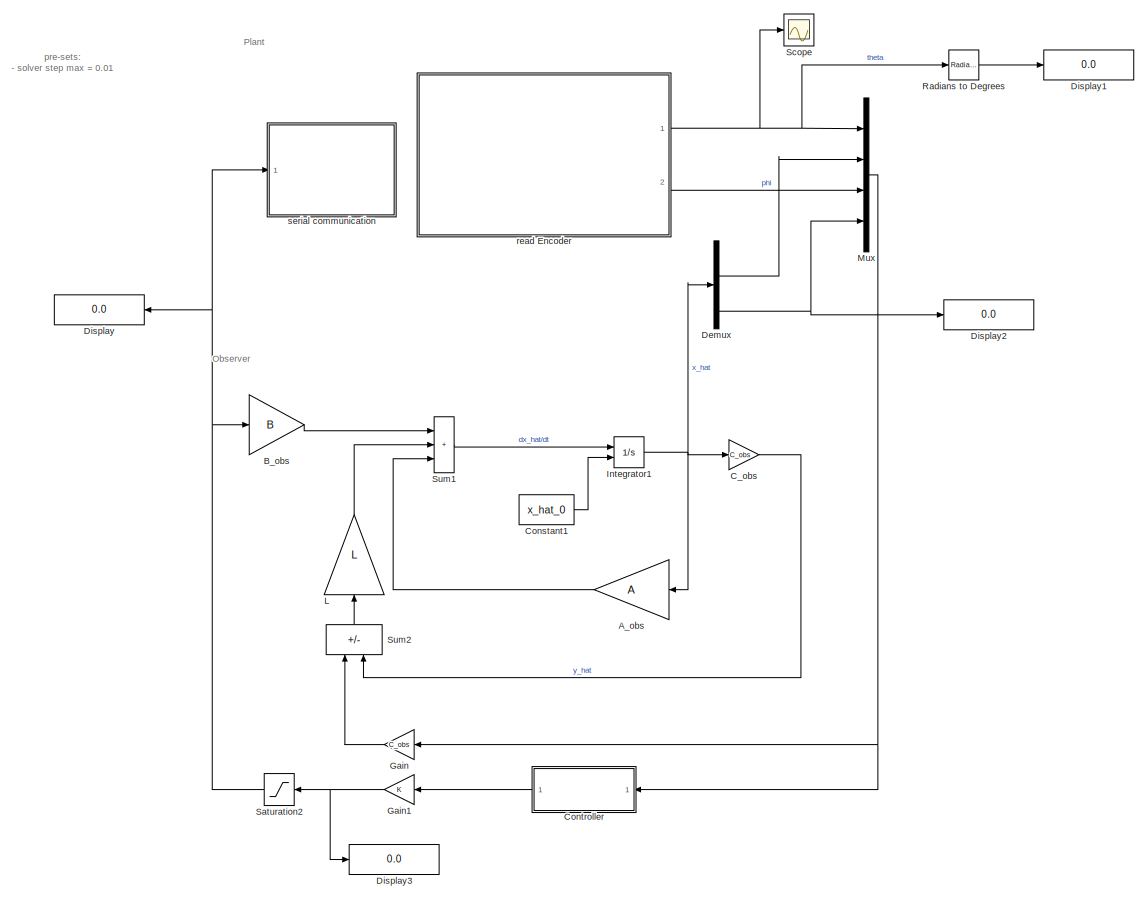
[diagram: root canvas - part 1/2, most of the canvas]
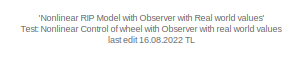
[diagram: root canvas - part 2/2, top left region]
MODEL slx_137b5816bc95
KIND model
CONFIG AbsTol = auto
CONFIG EnableMultiTasking = on
CONFIG FixedStep = 0.01
CONFIG MaxStep = 1e-3
CONFIG MinStep = 1e-5
CONFIG RelTol = 1e-3
CONFIG SampleTimeConstraint = Unconstrained
CONFIG SolverName = FixedStepAuto
CONFIG StartTime = 0.0
CONFIG StopTime = inf
BLOCK [Gain] A_obs
  Gain = A
  Multiplication = Matrix(K*u)
BLOCK [Gain] B_obs
  Gain = B
  Multiplication = Matrix(K*u)
BLOCK [Gain] C_obs
  Gain = C_obs
  Multiplication = Matrix(K*u)
BLOCK [Constant] Constant1
  Value = x_hat_0
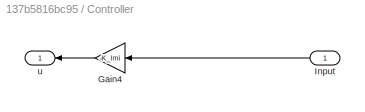
BLOCK [SubSystem] Controller
  NameLocation = top
  Ports = [1, 1]
  RequestExecContextInheritance = off
BLOCK [Gain] Controller/Gain4
  Gain = -K_lmi
  Multiplication = Matrix(K*u)
  NameLocation = top
BLOCK [Inport] Controller/Input
  NameLocation = top
BLOCK [Outport] Controller/u
  NameLocation = top
BLOCK [Demux] Demux
  Ports = [1, 4]
BLOCK [Display] Display
  Decimation = 1
  NameLocation = top
  Ports = [1]
BLOCK [Display] Display1
  Decimation = 1
  Ports = [1]
BLOCK [Display] Display2
  Decimation = 1
  Ports = [1]
BLOCK [Display] Display3
  Decimation = 1
  Ports = [1]
BLOCK [Gain] Gain
  Gain = C_obs
  Multiplication = Matrix(K*u)
  NameLocation = top
BLOCK [Gain] Gain1
  NameLocation = top
BLOCK [Integrator] Integrator1
  InitialCondition = x0
  InitialConditionSource = external
  Ports = [2, 1]
BLOCK [Gain] L
  Gain = L
  Multiplication = Matrix(K*u)
  NameLocation = left
BLOCK [Mux] Mux
  DisplayOption = bar
  Ports = [4, 1]
BLOCK [Reference] Radians to Degrees  REF=simulink_extras/Transformations/Radians
to Degrees
  Ports = [1, 1]
  SourceBlock = simulink_extras/Transformations/Radians\nto Degrees
  SourceProductBaseCode = SL
  SourceType = RadiansToDegrees
BLOCK [Saturate] Saturation2
  LowerLimit = -12
  NameLocation = top
  UpperLimit = 12
BLOCK [Scope] Scope
  Floating = off
  NumInputPorts = 1
  Ports = [1]
  ScopeSpecificationString = Simulink.scopes.TimeScopeBlockCfg('CurrentConfiguration', extmgr.ConfigurationSet(extmgr.Configuration('Core','General UI',true),extmgr.Configuration('Core','Source UI',true),extmgr.Configuration('Sources','WiredSimulink',true),extmgr.Configuration('Visuals','Time Domain',true),extmgr.Configuration('Tools','Plot Navigation',true),extmgr.Configuration('Tools','Measurements',true)),'Version','2022a'...<+1ch>
BLOCK [Sum] Sum1
  IconShape = rectangular
  Inputs = +++
  Ports = [3, 1]
BLOCK [Sum] Sum2
  IconShape = rectangular
  Inputs = +-
  NameLocation = right
  Ports = [2, 1]
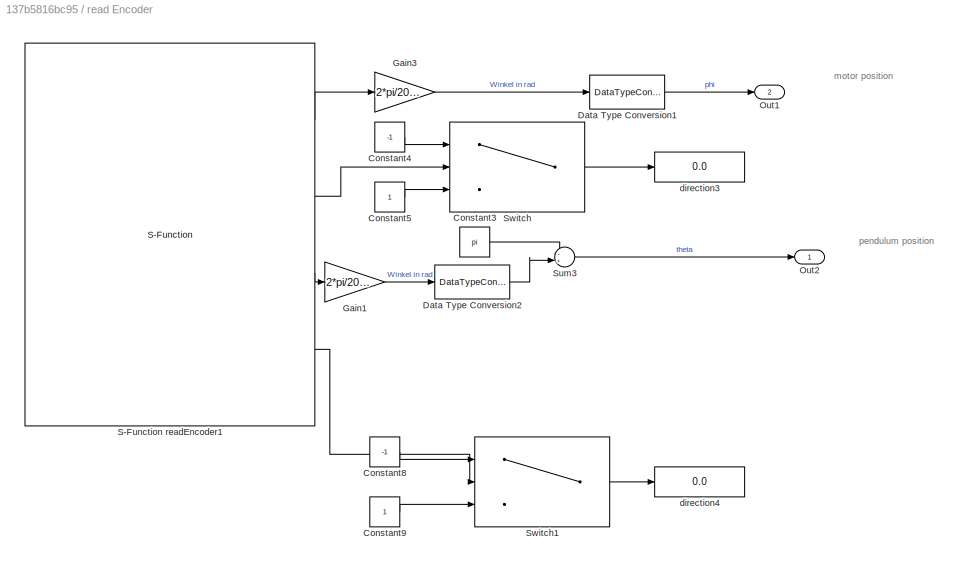
BLOCK [SubSystem] read Encoder
  Ports = [0, 2]
  RequestExecContextInheritance = off
BLOCK [Constant] read Encoder/Constant3
  Value = pi
BLOCK [Constant] read Encoder/Constant4
  Value = -1
BLOCK [Constant] read Encoder/Constant5
BLOCK [Constant] read Encoder/Constant8
  Value = -1
BLOCK [Constant] read Encoder/Constant9
BLOCK [DataTypeConversion] read Encoder/Data Type Conversion1
  OutDataTypeStr = double
  RndMeth = Floor
  SaturateOnIntegerOverflow = off
BLOCK [DataTypeConversion] read Encoder/Data Type Conversion2
  OutDataTypeStr = double
  RndMeth = Floor
  SaturateOnIntegerOverflow = off
BLOCK [Gain] read Encoder/Gain1
  Gain = 2*pi/2048
BLOCK [Gain] read Encoder/Gain3
  Gain = 2*pi/2048
BLOCK [Outport] read Encoder/Out1
  Port = 2
BLOCK [Outport] read Encoder/Out2
BLOCK [S-Function] read Encoder/S-Function readEncoder1
  CopyFcn = set_param(gcbh,'LinkStatus','none')
  EnableBusSupport = off
  FunctionName = readEnc_obs
  OpenFcn = sfunctionwizard(gcbh)
  Ports = [0, 4]
  SFcnIsStateOwnerBlock = off
  SFunctionDeploymentMode = off
  SFunctionModules = readEnc_obs_wrapper
BLOCK [Sum] read Encoder/Sum3
  Inputs = -+|
  Ports = [2, 1]
BLOCK [Switch] read Encoder/Switch
  Criteria = u2 > Threshold
  InputSameDT = off
  SaturateOnIntegerOverflow = off
BLOCK [Switch] read Encoder/Switch1
  Criteria = u2 > Threshold
  InputSameDT = off
  SaturateOnIntegerOverflow = off
BLOCK [Display] read Encoder/direction3
  Decimation = 1
  Ports = [1]
BLOCK [Display] read Encoder/direction4
  Decimation = 1
  Ports = [1]
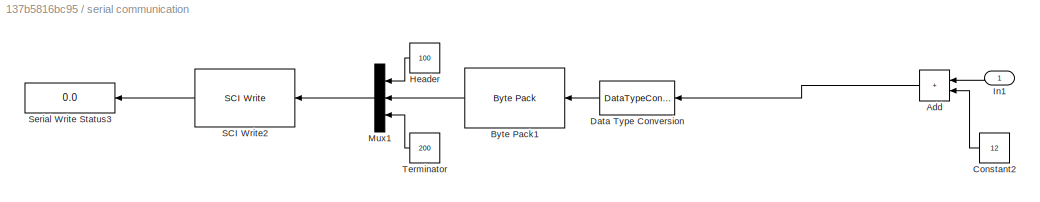
BLOCK [SubSystem] serial communication
  Ports = [1]
  RequestExecContextInheritance = off
BLOCK [Sum] serial communication/Add
  AccumDataTypeStr = uint16
  IconShape = rectangular
  NameLocation = top
  OutDataTypeStr = uint16
  Ports = [2, 1]
BLOCK [Reference] serial communication/Byte Pack1  REF=svdutilitieslib/Byte Pack
  NameLocation = top
  Ports = [1, 1]
  SourceBlock = svdutilitieslib/Byte Pack
  SourceProductBaseCode = ANDROID,ARDUINO,ML_ARDUINO,ECCORTEXA,ECCORTEXR,SC_BEAGLEBONE_BLUE,EC_FREEDOM_BOARD,EC_FRDM_K64F,INTEL_BLOCKSET,MICROBIT,NUCLEO,NVIDIA,PX4AUTOPILOTS,RASPPIIO,STMICRODIS,TIC2000,XILINX_BLOCKSET
  SourceType = Byte pack
BLOCK [Constant] serial communication/Constant2
  NameLocation = top
  OutDataTypeStr = single
  Value = 12
BLOCK [DataTypeConversion] serial communication/Data Type Conversion
  NameLocation = top
  OutDataTypeStr = uint16
  RndMeth = Floor
  SaturateOnIntegerOverflow = off
BLOCK [Constant] serial communication/Header
  NameLocation = top
  OutDataTypeStr = uint8
  SampleTime = 0.01
  Value = 100
BLOCK [Inport] serial communication/In1
BLOCK [Mux] serial communication/Mux1
  DisplayOption = bar
  Inputs = 3
  NameLocation = top
  Ports = [3, 1]
BLOCK [Reference] serial communication/SCI Write2  REF=mbedblockslib/SCI Write
  NameLocation = top
  Ports = [1, 1]
  SourceBlock = mbedblockslib/SCI Write
  SourceProductBaseCode = MICROBIT,NUCLEO,STMICRODIS
  SourceType = mbed.SCIWrite
BLOCK [Display] serial communication/Serial Write Status3
  Decimation = 1
  NameLocation = top
  Ports = [1]
BLOCK [Constant] serial communication/Terminator
  NameLocation = top
  OutDataTypeStr = uint8
  SampleTime = 0.01
  Value = 200
ANNOTATION (root): 'Nonlinear RIP Model with Observer with Real world values' Test: Nonlinear Control of wheel with Observer with real world values last edit 16.08.2022 TL
ANNOTATION (root): pre-sets: - solver step max = 0.01
ANNOTATION (root): Observer
ANNOTATION (root): Plant
ANNOTATION read Encoder: motor position
ANNOTATION read Encoder: pendulum position
LINE A_obs:1 -> Sum1:3
LINE B_obs:1 -> Sum1:1
LINE C_obs:1 -> Sum2:2
LINE Constant1:1 -> Integrator1:2
LINE Controller/Gain4:1 -> Controller/u:1
LINE Controller/Input:1 -> Controller/Gain4:1
LINE Controller:1 -> Gain1:1
LINE Demux:2 -> Mux:2
NET Demux:4 -> Display2:1, Mux:4
NET Gain1:1 -> Display3:1, Saturation2:1
LINE Gain:1 -> Sum2:1
NET Integrator1:1 -> A_obs:1, C_obs:1, Demux:1
LINE L:1 -> Sum1:2
NET Mux:1 -> Controller:1, Gain:1
LINE Radians to Degrees:1 -> Display1:1
NET Saturation2:1 -> B_obs:1, Display:1, serial communication:1
LINE Sum1:1 -> Integrator1:1
LINE Sum2:1 -> L:1
LINE read Encoder/Constant3:1 -> read Encoder/Sum3:1
LINE read Encoder/Constant4:1 -> read Encoder/Switch:1
LINE read Encoder/Constant5:1 -> read Encoder/Switch:3
LINE read Encoder/Constant8:1 -> read Encoder/Switch1:1
LINE read Encoder/Constant9:1 -> read Encoder/Switch1:3
LINE read Encoder/Data Type Conversion1:1 -> read Encoder/Out1:1
LINE read Encoder/Data Type Conversion2:1 -> read Encoder/Sum3:2
LINE read Encoder/Gain1:1 -> read Encoder/Data Type Conversion2:1
LINE read Encoder/Gain3:1 -> read Encoder/Data Type Conversion1:1
LINE read Encoder/S-Function readEncoder1:1 -> read Encoder/Gain3:1
LINE read Encoder/S-Function readEncoder1:2 -> read Encoder/Switch:2
LINE read Encoder/S-Function readEncoder1:3 -> read Encoder/Gain1:1
LINE read Encoder/S-Function readEncoder1:4 -> read Encoder/Switch1:2
LINE read Encoder/Sum3:1 -> read Encoder/Out2:1
LINE read Encoder/Switch1:1 -> read Encoder/direction4:1
LINE read Encoder/Switch:1 -> read Encoder/direction3:1
NET read Encoder:1 -> Mux:1, Radians to Degrees:1, Scope:1
LINE read Encoder:2 -> Mux:3
LINE serial communication/Add:1 -> serial communication/Data Type Conversion:1
LINE serial communication/Byte Pack1:1 -> serial communication/Mux1:2
LINE serial communication/Constant2:1 -> serial communication/Add:2
LINE serial communication/Data Type Conversion:1 -> serial communication/Byte Pack1:1
LINE serial communication/Header:1 -> serial communication/Mux1:1
LINE serial communication/In1:1 -> serial communication/Add:1
LINE serial communication/Mux1:1 -> serial communication/SCI Write2:1
LINE serial communication/SCI Write2:1 -> serial communication/Serial Write Status3:1
LINE serial communication/Terminator:1 -> serial communication/Mux1:3
note: NET lines group one-source signal fan-out (src -> all destinations, sorted); 1:1 wires keep LINE
